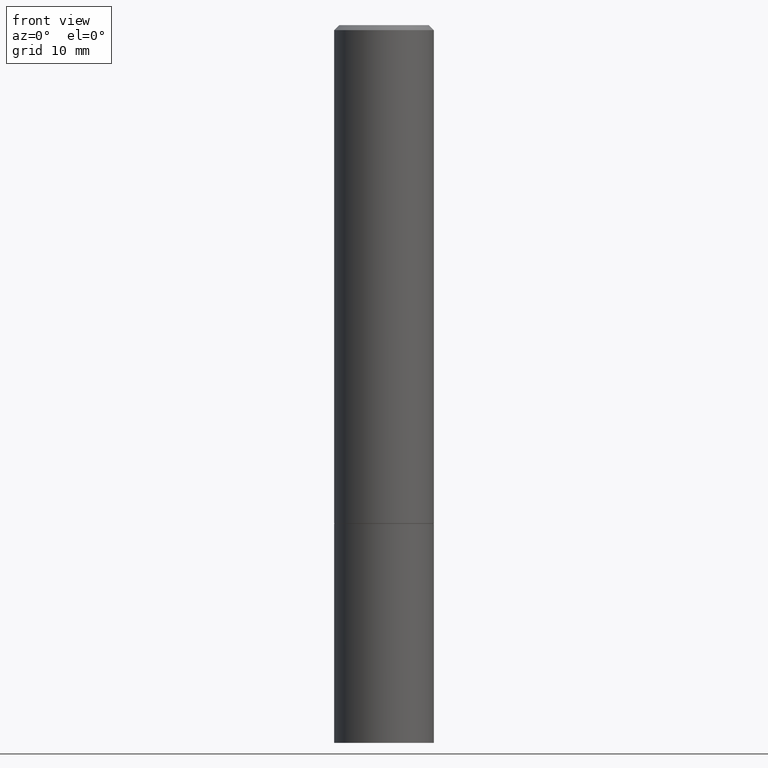
[diagram: clean part render]
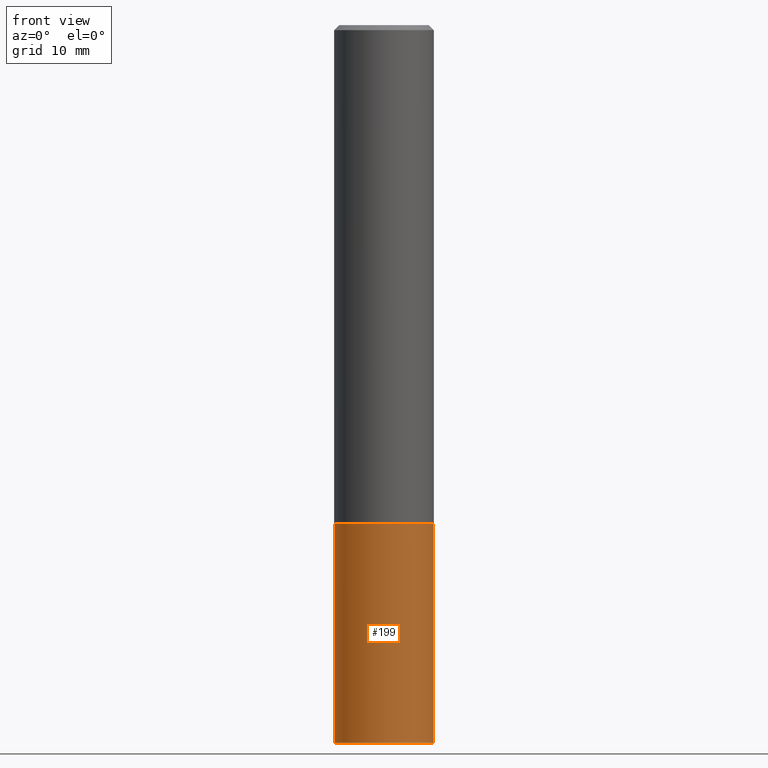
[diagram: same view with one face highlighted and labeled with its STEP entity id]
A machine part, front view. The second image highlights one B-rep face of the part: STEP entity #199.
In plain terms, the highlighted cylindrical surface (partial cylindrical patch) has radius 5 mm, axis along (-0, 0, 1).
Its self-contained STEP definition (entity closure, byte-faithful):
#3 = EDGE_CURVE ( 'NONE', #230, #363, #111, .T. ) ;
#9 = DIRECTION ( 'NONE',  ( 1.000000000000000000, -6.982962677686267499E-15, 0.000000000000000000 ) ) ;
#27 = ORIENTED_EDGE ( 'NONE', *, *, #77, .F. ) ;
#30 = DIRECTION ( 'NONE',  ( 1.000000000000000000, -6.982962677686265922E-15, 4.876176775795935793E-29 ) ) ;
#36 = AXIS2_PLACEMENT_3D ( 'NONE', #268, #100, #102 ) ;
#40 = EDGE_CURVE ( 'NONE', #165, #230, #191, .T. ) ;
#41 = CARTESIAN_POINT ( 'NONE',  ( -0.1968500000000000250, 1.398703375343757393E-15, -9.682923725166783677E-30 ) ) ;
#52 = ORIENTED_EDGE ( 'NONE', *, *, #3, .T. ) ;
#57 = ORIENTED_EDGE ( 'NONE', *, *, #40, .T. ) ;
#58 = CARTESIAN_POINT ( 'NONE',  ( 0.000000000000000000, 0.000000000000000000, 0.000000000000000000 ) ) ;
#69 = CARTESIAN_POINT ( 'NONE',  ( -0.1968500000000000250, -6.986263633954999297E-15, -2.834600000000000009 ) ) ;
#77 = EDGE_CURVE ( 'NONE', #342, #363, #243, .T. ) ;
#87 = AXIS2_PLACEMENT_3D ( 'NONE', #312, #303, #9 ) ;
#100 = DIRECTION ( 'NONE',  ( -2.445468806185136597E-29, 3.491481338843145583E-15, 1.000000000000000000 ) ) ;
#102 = DIRECTION ( 'NONE',  ( 1.000000000000000000, -6.982962677686267499E-15, 0.000000000000000000 ) ) ;
#111 = LINE ( 'NONE', #219, #249 ) ;
#141 = AXIS2_PLACEMENT_3D ( 'NONE', #58, #148, #30 ) ;
#148 = DIRECTION ( 'NONE',  ( -2.445468806185136597E-29, 3.491481338843145583E-15, 1.000000000000000000 ) ) ;
#155 = DIRECTION ( 'NONE',  ( -2.445468806185136877E-29, 3.491481338843145188E-15, 1.000000000000000000 ) ) ;
#165 = VERTEX_POINT ( 'NONE', #69 ) ;
#183 = CARTESIAN_POINT ( 'NONE',  ( 0.1968500000000000250, -8.247577218615273316E-15, -1.968500000000000139 ) ) ;
#191 = CIRCLE ( 'NONE', #36, 0.1968500000000000250 ) ;
#199 = ADVANCED_FACE ( 'NONE', ( #238 ), #349, .T. ) ;
#216 = CARTESIAN_POINT ( 'NONE',  ( 0.1968500000000000250, -1.127154920618732249E-14, -2.834600000000000009 ) ) ;
#219 = CARTESIAN_POINT ( 'NONE',  ( 0.1968500000000000250, -1.374596203102541608E-15, 9.598753983154300858E-30 ) ) ;
#230 = VERTEX_POINT ( 'NONE', #216 ) ;
#238 = FACE_OUTER_BOUND ( 'NONE', #292, .T. ) ;
#243 = CIRCLE ( 'NONE', #87, 0.1968500000000000250 ) ;
#249 = VECTOR ( 'NONE', #155, 39.37007874015748143 ) ;
#268 = CARTESIAN_POINT ( 'NONE',  ( 6.931925878012387517E-29, -9.896953003084780885E-15, -2.834600000000000009 ) ) ;
#271 = VECTOR ( 'NONE', #313, 39.37007874015748143 ) ;
#276 = CARTESIAN_POINT ( 'NONE',  ( -0.1968500000000000250, -6.986263633954999297E-15, -1.968500000000000139 ) ) ;
#286 = ORIENTED_EDGE ( 'NONE', *, *, #317, .F. ) ;
#292 = EDGE_LOOP ( 'NONE', ( #286, #57, #52, #27 ) ) ;
#303 = DIRECTION ( 'NONE',  ( -2.445468806185136597E-29, 3.491481338843145583E-15, 1.000000000000000000 ) ) ;
#312 = CARTESIAN_POINT ( 'NONE',  ( 4.813905344975441835E-29, -6.872981015512731707E-15, -1.968500000000000139 ) ) ;
#313 = DIRECTION ( 'NONE',  ( -2.445468806185136877E-29, 3.491481338843145188E-15, 1.000000000000000000 ) ) ;
#317 = EDGE_CURVE ( 'NONE', #165, #342, #353, .T. ) ;
#342 = VERTEX_POINT ( 'NONE', #276 ) ;
#349 = CYLINDRICAL_SURFACE ( 'NONE', #141, 0.1968500000000000250 ) ;
#353 = LINE ( 'NONE', #41, #271 ) ;
#363 = VERTEX_POINT ( 'NONE', #183 ) ;